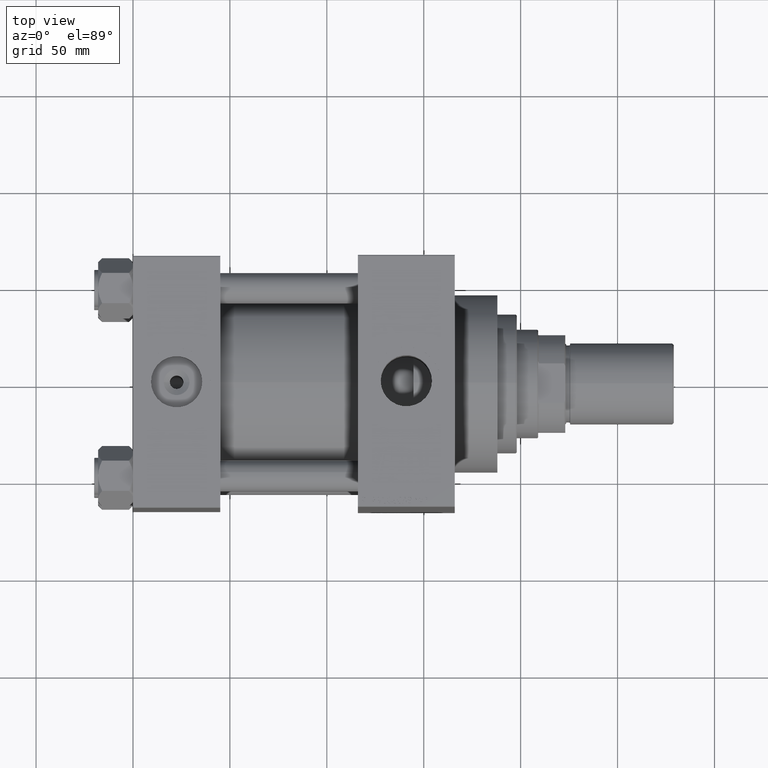
[diagram: clean part render]
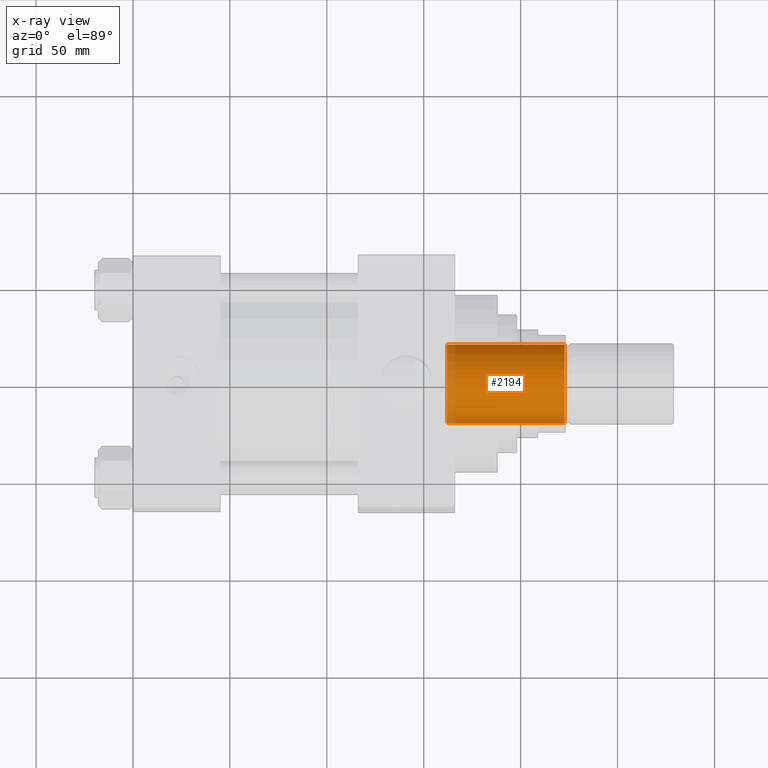
[diagram: x-ray — body ghosted, one internal face saturated and labeled with its STEP entity id]
A machine part, top view, then the same camera in x-ray: the body is ghosted and one INTERNAL B-rep face — a face not visible from any outside direction — is saturated and labeled: STEP entity #2194.
In plain terms, the highlighted cylindrical surface (partial cylindrical patch) has radius 20.25 mm, axis along (1, 0, 0).
Its self-contained STEP definition (entity closure, byte-faithful):
#893 = DIRECTION ( 'NONE',  ( 1.000000000000000000, 0.000000000000000000, 0.000000000000000000 ) ) ;
#1404 = DIRECTION ( 'NONE',  ( 1.000000000000000000, 0.000000000000000000, 0.000000000000000000 ) ) ;
#1890 = CYLINDRICAL_SURFACE ( 'NONE', #5481, 20.24999999999999289 ) ;
#2194 = ADVANCED_FACE ( 'NONE', ( #38619 ), #1890, .F. ) ;
#4024 = CARTESIAN_POINT ( 'NONE',  ( -20.24999999999999289, 2.479909768273389511E-15, 177.7000000000000171 ) ) ;
#4111 = ORIENTED_EDGE ( 'NONE', *, *, #42768, .F. ) ;
#5272 = CARTESIAN_POINT ( 'NONE',  ( 0.000000000000000000, 0.000000000000000000, 117.0000000000000142 ) ) ;
#5481 = AXIS2_PLACEMENT_3D ( 'NONE', #9243, #27386, #1404 ) ;
#6792 = ORIENTED_EDGE ( 'NONE', *, *, #35894, .F. ) ;
#7899 = CARTESIAN_POINT ( 'NONE',  ( -20.24999999999999289, 2.479909768273389511E-15, 178.0000000000000284 ) ) ;
#8807 = EDGE_CURVE ( 'NONE', #44972, #44811, #15946, .T. ) ;
#9060 = ORIENTED_EDGE ( 'NONE', *, *, #48431, .T. ) ;
#9243 = CARTESIAN_POINT ( 'NONE',  ( 0.000000000000000000, 0.000000000000000000, 178.0000000000000284 ) ) ;
#10597 = CARTESIAN_POINT ( 'NONE',  ( -20.24999999999998934, 2.479909768273389117E-15, 117.0000000000000142 ) ) ;
#12086 = VERTEX_POINT ( 'NONE', #31957 ) ;
#15946 = LINE ( 'NONE', #7899, #47477 ) ;
#16002 = DIRECTION ( 'NONE',  ( 0.000000000000000000, 0.000000000000000000, 1.000000000000000000 ) ) ;
#17189 = LINE ( 'NONE', #35543, #19317 ) ;
#19317 = VECTOR ( 'NONE', #43617, 1000.000000000000000 ) ;
#19444 = DIRECTION ( 'NONE',  ( 1.000000000000000000, 0.000000000000000000, 0.000000000000000000 ) ) ;
#20757 = CIRCLE ( 'NONE', #21542, 20.24999999999998934 ) ;
#21542 = AXIS2_PLACEMENT_3D ( 'NONE', #5272, #35145, #893 ) ;
#27386 = DIRECTION ( 'NONE',  ( -0.000000000000000000, -0.000000000000000000, 1.000000000000000000 ) ) ;
#30438 = CIRCLE ( 'NONE', #41391, 20.24999999999999289 ) ;
#30799 = CARTESIAN_POINT ( 'NONE',  ( 20.24999999999999289, 0.000000000000000000, 177.7000000000000171 ) ) ;
#31131 = EDGE_LOOP ( 'NONE', ( #6792, #39319, #9060, #4111 ) ) ;
#31957 = CARTESIAN_POINT ( 'NONE',  ( 20.24999999999998934, 0.000000000000000000, 117.0000000000000142 ) ) ;
#35145 = DIRECTION ( 'NONE',  ( -0.000000000000000000, -0.000000000000000000, 1.000000000000000000 ) ) ;
#35543 = CARTESIAN_POINT ( 'NONE',  ( 20.24999999999999289, 0.000000000000000000, 178.0000000000000284 ) ) ;
#35894 = EDGE_CURVE ( 'NONE', #44972, #12086, #20757, .T. ) ;
#38281 = CARTESIAN_POINT ( 'NONE',  ( 0.000000000000000000, 0.000000000000000000, 177.7000000000000171 ) ) ;
#38619 = FACE_OUTER_BOUND ( 'NONE', #31131, .T. ) ;
#39319 = ORIENTED_EDGE ( 'NONE', *, *, #8807, .T. ) ;
#41391 = AXIS2_PLACEMENT_3D ( 'NONE', #38281, #16002, #19444 ) ;
#42768 = EDGE_CURVE ( 'NONE', #12086, #45870, #17189, .T. ) ;
#43617 = DIRECTION ( 'NONE',  ( -0.000000000000000000, -0.000000000000000000, 1.000000000000000000 ) ) ;
#44811 = VERTEX_POINT ( 'NONE', #4024 ) ;
#44972 = VERTEX_POINT ( 'NONE', #10597 ) ;
#45339 = DIRECTION ( 'NONE',  ( -0.000000000000000000, -0.000000000000000000, 1.000000000000000000 ) ) ;
#45870 = VERTEX_POINT ( 'NONE', #30799 ) ;
#47477 = VECTOR ( 'NONE', #45339, 1000.000000000000000 ) ;
#48431 = EDGE_CURVE ( 'NONE', #44811, #45870, #30438, .T. ) ;